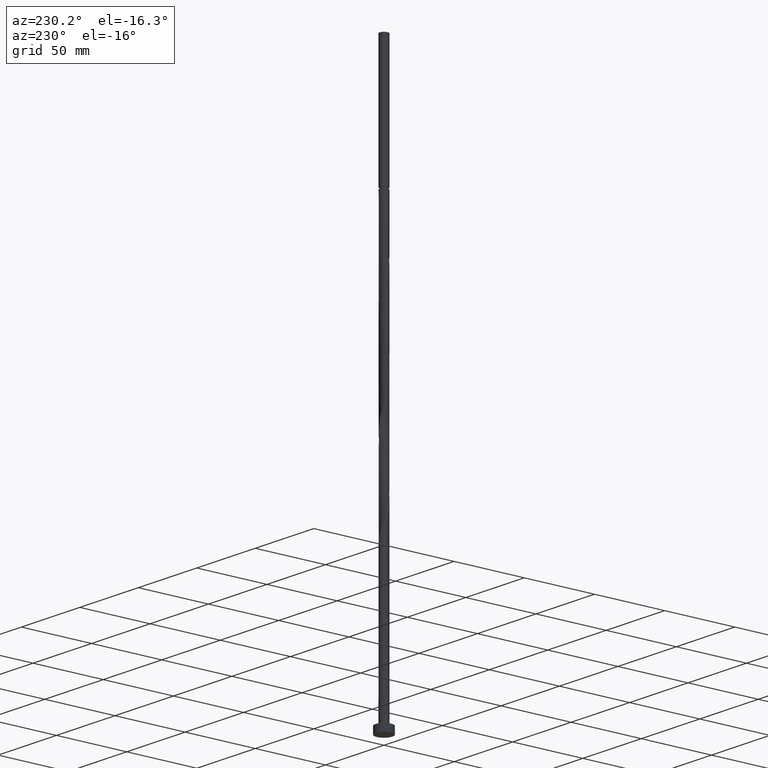
[diagram: clean part render]
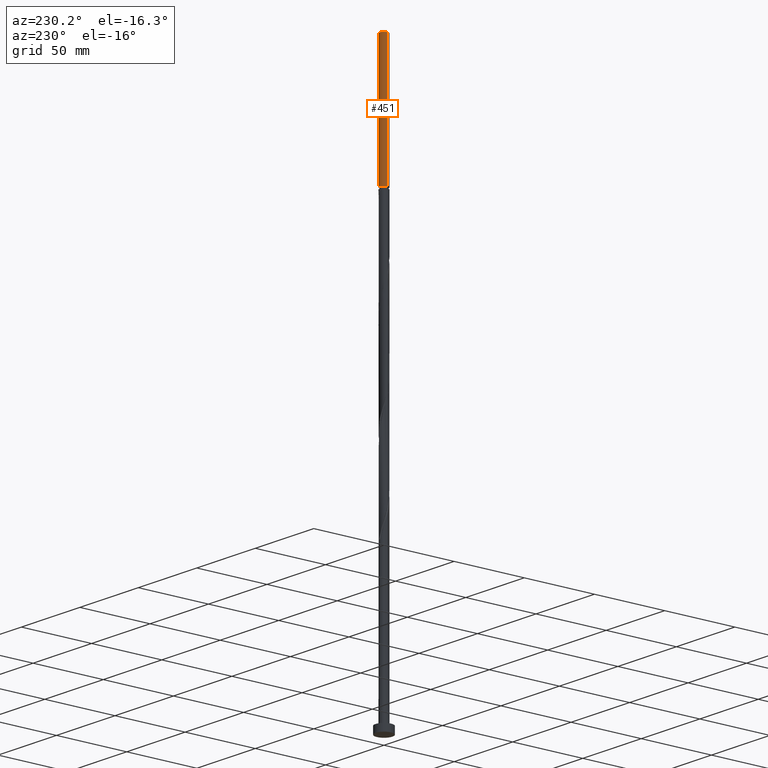
[diagram: same view with one face highlighted and labeled with its STEP entity id]
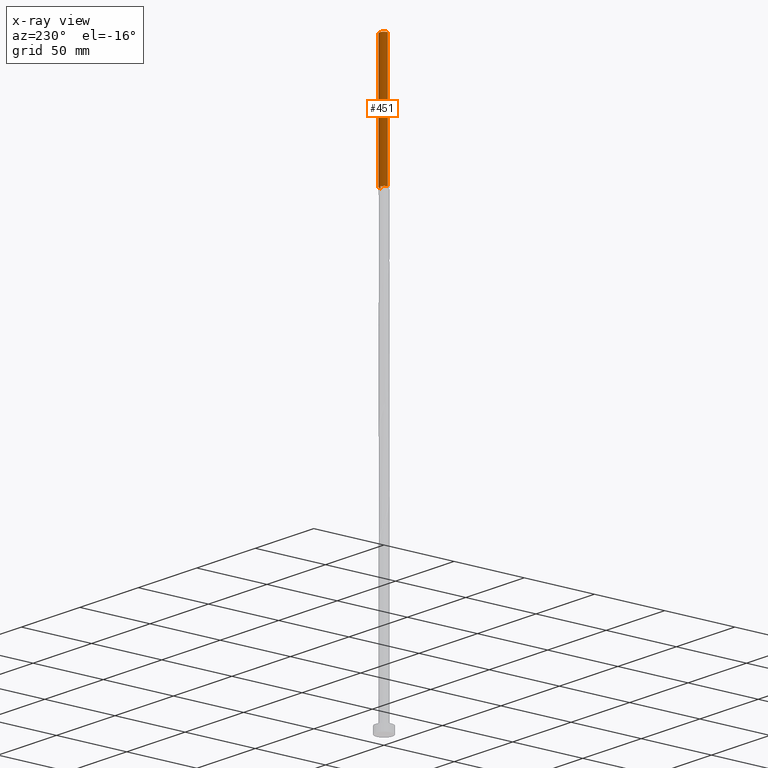
[diagram: x-ray of the same camera — body ghosted, the highlighted face saturated]
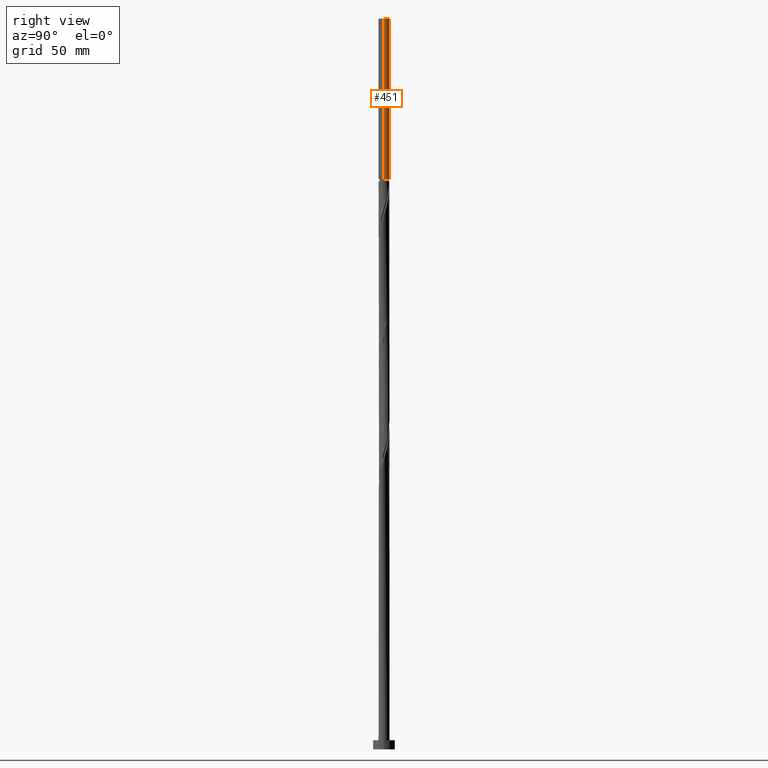
[diagram: same view with one face highlighted and labeled with its STEP entity id]
A machine part, auxiliary view. The second image highlights one B-rep face of the part: STEP entity #451.
The next image is the same camera in x-ray: the body ghosted, the highlighted face saturated — about 0% of this face is hidden behind the body in this view.
A second angle (right view) of the same face is appended — the face is thin or edge-on in the first view.
In plain terms, the highlighted cylindrical surface (edge-blend (fillet) strip) has radius 3 mm, axis along (-0, -0, -1).
Its self-contained STEP definition (entity closure, byte-faithful):
#14 = AXIS2_PLACEMENT_3D ( 'NONE', #402, #1154, #583 ) ;
#97 = AXIS2_PLACEMENT_3D ( 'NONE', #1523, #488, #1377 ) ;
#107 = DIRECTION ( 'NONE',  ( -0.000000000000000000, -0.000000000000000000, -1.000000000000000000 ) ) ;
#149 = VERTEX_POINT ( 'NONE', #1458 ) ;
#222 = LINE ( 'NONE', #1670, #693 ) ;
#228 = EDGE_CURVE ( 'NONE', #1607, #1269, #465, .T. ) ;
#306 = DIRECTION ( 'NONE',  ( -0.000000000000000000, -0.000000000000000000, -1.000000000000000000 ) ) ;
#402 = CARTESIAN_POINT ( 'NONE',  ( 0.000000000000000000, 0.000000000000000000, 400.0000000000000000 ) ) ;
#451 = ADVANCED_FACE ( 'NONE', ( #1368 ), #927, .T. ) ;
#465 = CIRCLE ( 'NONE', #1347, 2.999999999999974687 ) ;
#488 = DIRECTION ( 'NONE',  ( -0.000000000000000000, -0.000000000000000000, -1.000000000000000000 ) ) ;
#563 = LINE ( 'NONE', #1171, #1537 ) ;
#583 = DIRECTION ( 'NONE',  ( 1.000000000000000000, 0.000000000000000000, 0.000000000000000000 ) ) ;
#651 = ORIENTED_EDGE ( 'NONE', *, *, #1528, .F. ) ;
#693 = VECTOR ( 'NONE', #107, 1000.000000000000000 ) ;
#700 = ORIENTED_EDGE ( 'NONE', *, *, #1548, .F. ) ;
#728 = EDGE_LOOP ( 'NONE', ( #651, #1421, #1430, #700 ) ) ;
#824 = CARTESIAN_POINT ( 'NONE',  ( 3.000000000000000444, 3.673940397442059868E-16, 400.0000000000000000 ) ) ;
#871 = VERTEX_POINT ( 'NONE', #824 ) ;
#880 = DIRECTION ( 'NONE',  ( -1.000000000000000000, 0.000000000000000000, 0.000000000000000000 ) ) ;
#927 = CYLINDRICAL_SURFACE ( 'NONE', #97, 3.000000000000000444 ) ;
#1018 = CIRCLE ( 'NONE', #14, 3.000000000000000444 ) ;
#1069 = EDGE_CURVE ( 'NONE', #871, #1269, #222, .T. ) ;
#1154 = DIRECTION ( 'NONE',  ( 0.000000000000000000, 0.000000000000000000, 1.000000000000000000 ) ) ;
#1171 = CARTESIAN_POINT ( 'NONE',  ( -3.000000000000000444, 0.000000000000000000, 400.0000000000000000 ) ) ;
#1269 = VERTEX_POINT ( 'NONE', #1694 ) ;
#1298 = DIRECTION ( 'NONE',  ( -0.000000000000000000, -0.000000000000000000, -1.000000000000000000 ) ) ;
#1347 = AXIS2_PLACEMENT_3D ( 'NONE', #1612, #306, #880 ) ;
#1368 = FACE_OUTER_BOUND ( 'NONE', #728, .T. ) ;
#1377 = DIRECTION ( 'NONE',  ( -1.000000000000000000, 0.000000000000000000, 0.000000000000000000 ) ) ;
#1421 = ORIENTED_EDGE ( 'NONE', *, *, #1069, .T. ) ;
#1430 = ORIENTED_EDGE ( 'NONE', *, *, #228, .F. ) ;
#1458 = CARTESIAN_POINT ( 'NONE',  ( -3.000000000000000444, 0.000000000000000000, 400.0000000000000000 ) ) ;
#1523 = CARTESIAN_POINT ( 'NONE',  ( 0.000000000000000000, 0.000000000000000000, 400.0000000000000000 ) ) ;
#1528 = EDGE_CURVE ( 'NONE', #871, #149, #1018, .T. ) ;
#1537 = VECTOR ( 'NONE', #1298, 1000.000000000000000 ) ;
#1548 = EDGE_CURVE ( 'NONE', #149, #1607, #563, .T. ) ;
#1607 = VERTEX_POINT ( 'NONE', #1889 ) ;
#1612 = CARTESIAN_POINT ( 'NONE',  ( 0.000000000000000000, 0.000000000000000000, 312.0905868880871026 ) ) ;
#1670 = CARTESIAN_POINT ( 'NONE',  ( 3.000000000000000444, 3.673940397442059868E-16, 400.0000000000000000 ) ) ;
#1694 = CARTESIAN_POINT ( 'NONE',  ( 2.999999999999974687, 3.673940397442043598E-16, 312.0905868880871026 ) ) ;
#1889 = CARTESIAN_POINT ( 'NONE',  ( -2.999999999999974687, 0.000000000000000000, 312.0905868880871026 ) ) ;